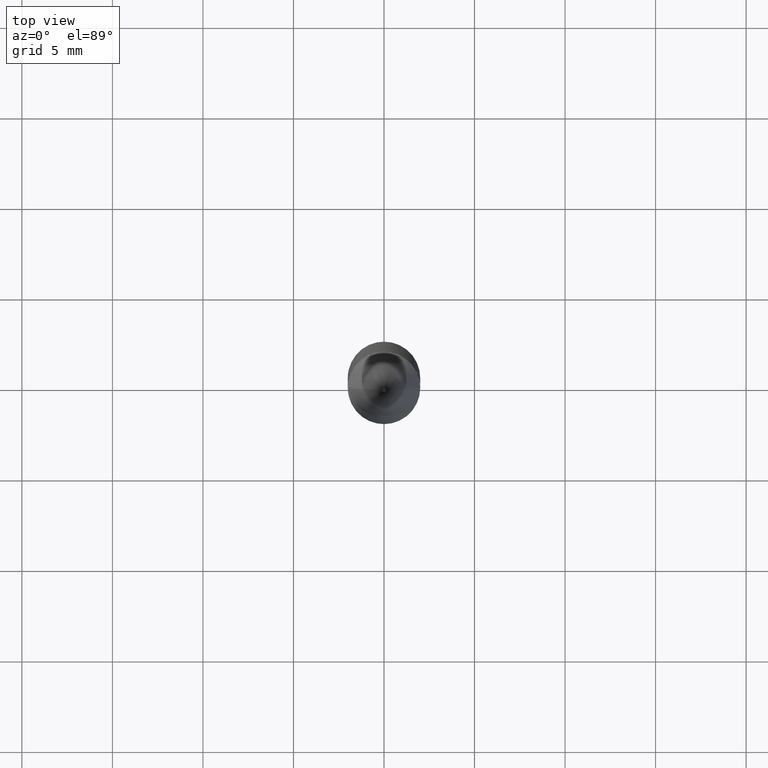
[diagram: clean part render]
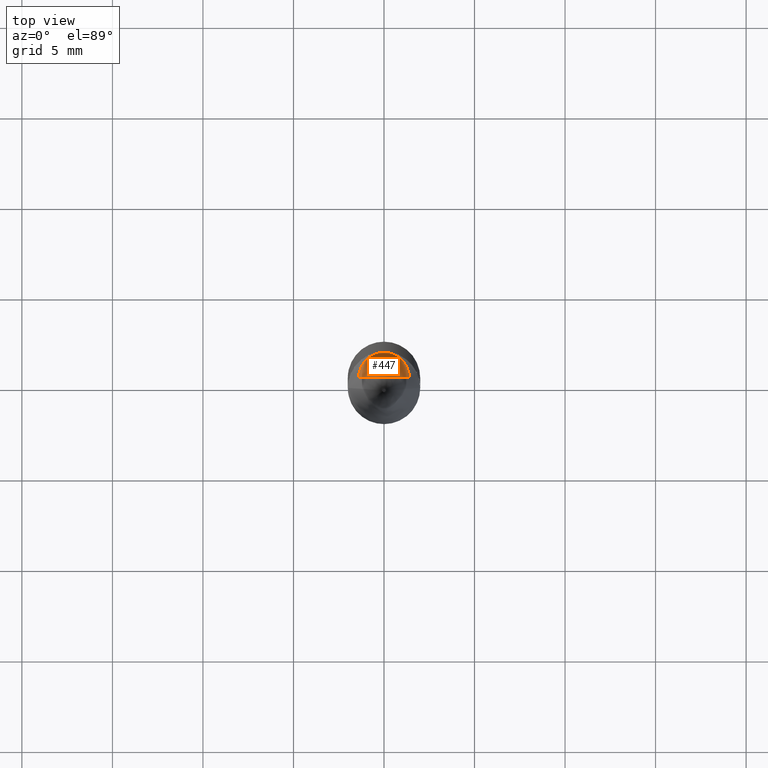
[diagram: same view with one face highlighted and labeled with its STEP entity id]
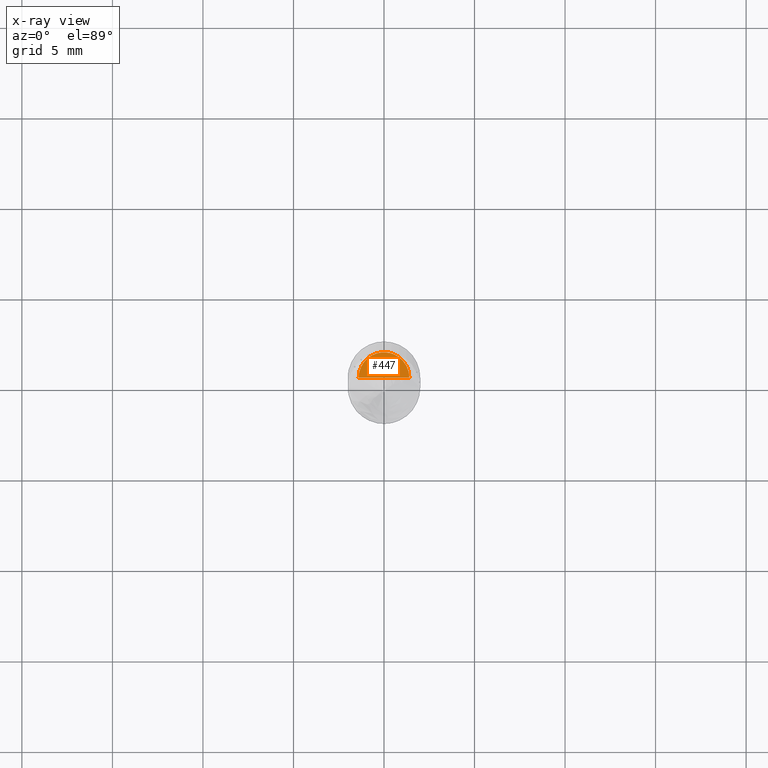
[diagram: x-ray of the same camera — body ghosted, the highlighted face saturated]
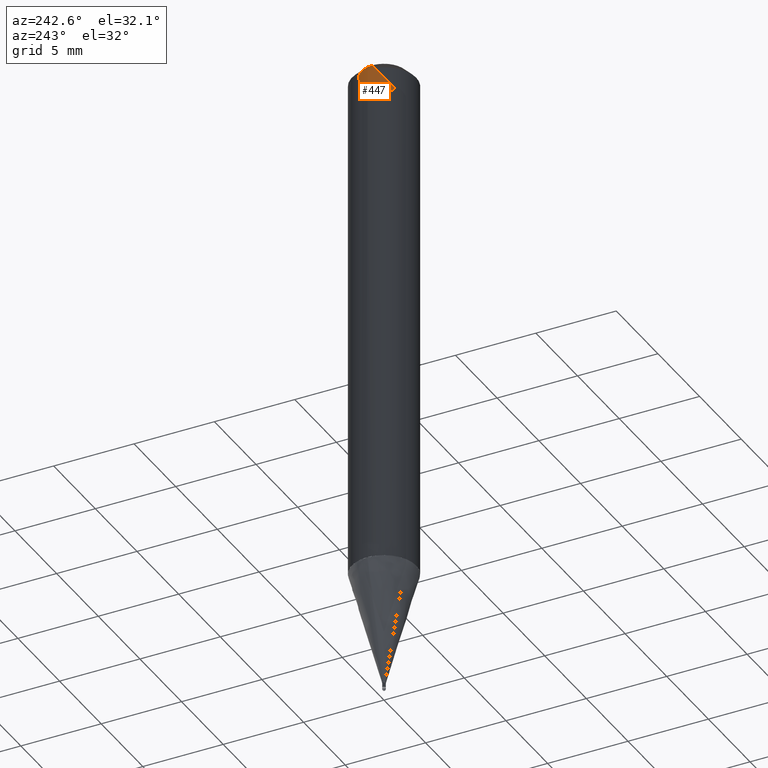
[diagram: same view with one face highlighted and labeled with its STEP entity id]
A machine part, top view. The second image highlights one B-rep face of the part: STEP entity #447.
The next image is the same camera in x-ray: the body ghosted, the highlighted face saturated — about 0% of this face is hidden behind the body in this view.
A second angle (auxiliary view) of the same face is appended — the face is thin or edge-on in the first view.
In plain terms, the highlighted face is a freeform B-spline surface patch.
Its self-contained STEP definition (entity closure, byte-faithful):
#205=CARTESIAN_POINT('',(1.4,0.0,32.41));
#206=CARTESIAN_POINT('',(1.4,1.4,32.41));
#207=CARTESIAN_POINT('',(0.0,1.4,32.41));
#208=CARTESIAN_POINT('',(-1.4,1.4,32.41));
#209=CARTESIAN_POINT('',(-1.4,0.0,32.41));
#210=CARTESIAN_POINT('',(0.0,0.0,32.41));
#432=(
BOUNDED_SURFACE()
B_SPLINE_SURFACE(1,2,(
(#205,#206,#207,#208,#209),
(#210,#210,#210,#210,#210)
), .UNSPECIFIED.,.F.,.F.,.F.)
B_SPLINE_SURFACE_WITH_KNOTS((2,2),(3,2,3),(
0.0,1.0),(
0.0,0.5,1.0), .UNSPECIFIED.)
GEOMETRIC_REPRESENTATION_ITEM()
RATIONAL_B_SPLINE_SURFACE(((1.0,0.707106781187,1.0,0.707106781187,1.0),
(1.0,0.707106781187,1.0,0.707106781187,1.0)
))
REPRESENTATION_ITEM('')
SURFACE()
);
#433=(
BOUNDED_CURVE()
B_SPLINE_CURVE(1,(#210,#205),.UNSPECIFIED.,.F.,.F.)
B_SPLINE_CURVE_WITH_KNOTS((2,2),
(0.0,1.0),.UNSPECIFIED.)
CURVE()
GEOMETRIC_REPRESENTATION_ITEM()
RATIONAL_B_SPLINE_CURVE((1.0,1.0))
REPRESENTATION_ITEM('')
);
#434=(
BOUNDED_CURVE()
B_SPLINE_CURVE(2,(#205,#206,#207,#208,#209),.UNSPECIFIED.,.F.,.F.)
B_SPLINE_CURVE_WITH_KNOTS((3,2,3),
(0.0,0.5,1.0),.UNSPECIFIED.)
CURVE()
GEOMETRIC_REPRESENTATION_ITEM()
RATIONAL_B_SPLINE_CURVE((1.0,0.707106781187,1.0,0.707106781187,1.0))
REPRESENTATION_ITEM('')
);
#435=(
BOUNDED_CURVE()
B_SPLINE_CURVE(1,(#209,#210),.UNSPECIFIED.,.F.,.F.)
B_SPLINE_CURVE_WITH_KNOTS((2,2),
(0.0,1.0),.UNSPECIFIED.)
CURVE()
GEOMETRIC_REPRESENTATION_ITEM()
RATIONAL_B_SPLINE_CURVE((1.0,1.0))
REPRESENTATION_ITEM('')
);
#436=VERTEX_POINT('',#205);
#437=VERTEX_POINT('',#209);
#438=VERTEX_POINT('',#210);
#439=EDGE_CURVE('',#438,#436,#433,.T.);
#440=EDGE_CURVE('',#436,#437,#434,.T.);
#441=EDGE_CURVE('',#437,#438,#435,.T.);
#442=ORIENTED_EDGE('',*,*,#439,.T.);
#443=ORIENTED_EDGE('',*,*,#440,.T.);
#444=ORIENTED_EDGE('',*,*,#441,.T.);
#445=EDGE_LOOP('',(#442,#443,#444));
#446=FACE_OUTER_BOUND('',#445,.T.);
#447=ADVANCED_FACE('',(#446),#432,.T.);